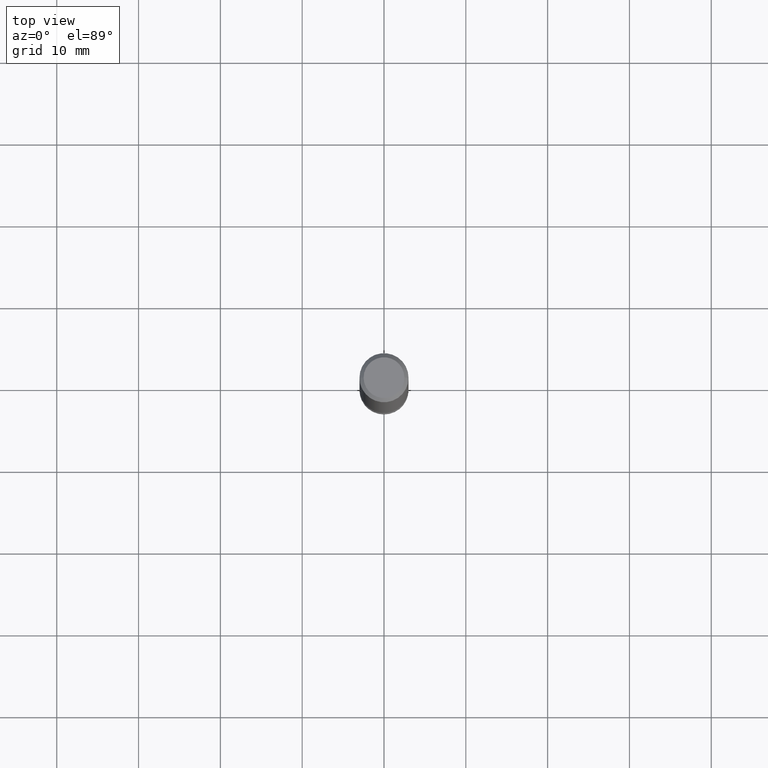
[diagram: clean part render]
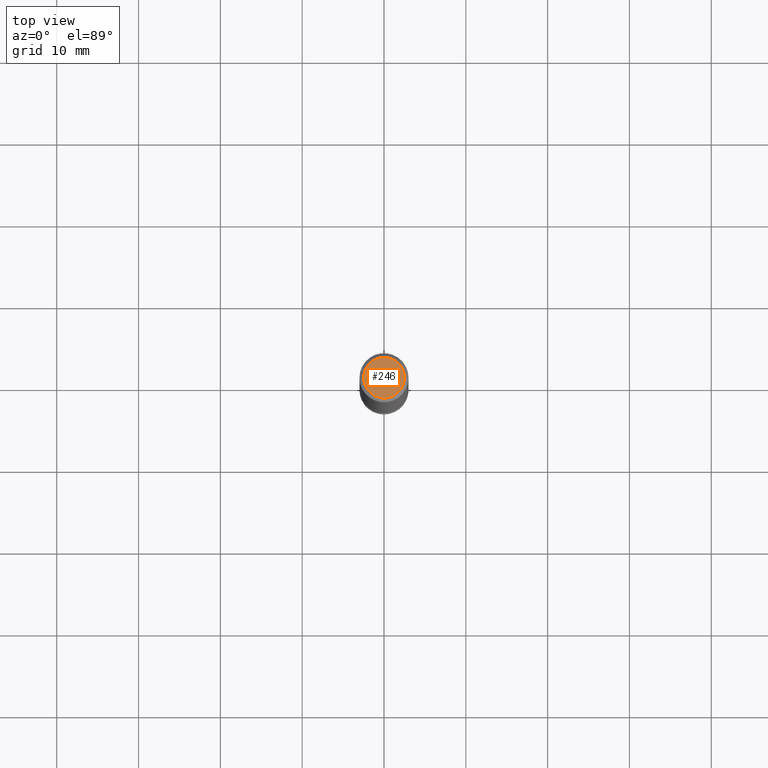
[diagram: same view with one face highlighted and labeled with its STEP entity id]
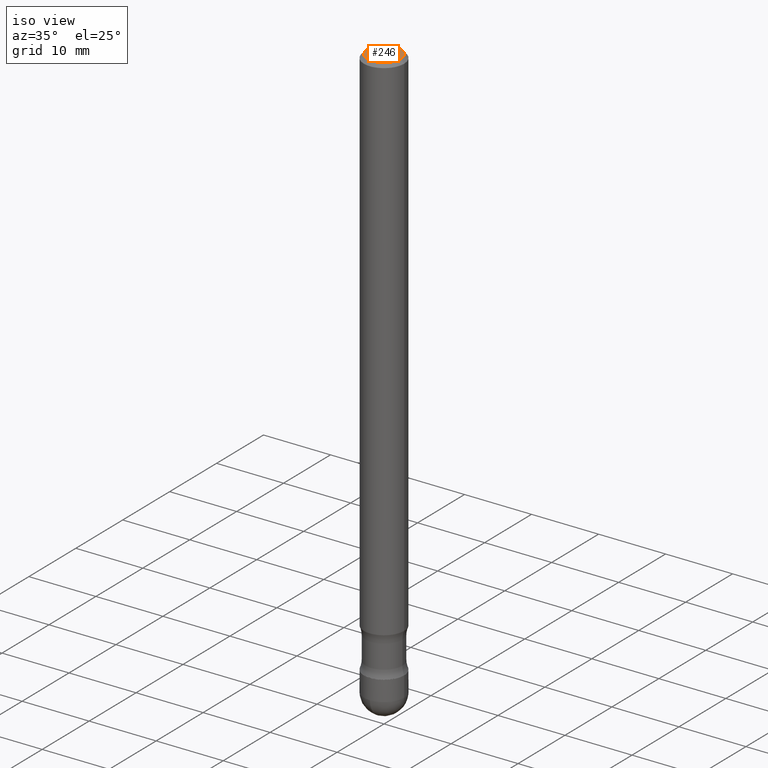
[diagram: same view with one face highlighted and labeled with its STEP entity id]
A machine part, top view. The second image highlights one B-rep face of the part: STEP entity #246.
A second angle (iso view) of the same face is appended — the face is thin or edge-on in the first view.
In plain terms, the highlighted planar face has unit normal (-0, 0, 1).
Its self-contained STEP definition (entity closure, byte-faithful):
#3 = VERTEX_POINT ( 'NONE', #464 ) ;
#50 = DIRECTION ( 'NONE',  ( 1.000000000000000000, -6.982962677686265922E-15, 4.876176775795935793E-29 ) ) ;
#120 = CIRCLE ( 'NONE', #402, 0.09809999999999965969 ) ;
#127 = ORIENTED_EDGE ( 'NONE', *, *, #268, .F. ) ;
#153 = AXIS2_PLACEMENT_3D ( 'NONE', #566, #171, #50 ) ;
#171 = DIRECTION ( 'NONE',  ( -2.438088387897960049E-29, 3.491481338843145188E-15, 1.000000000000000000 ) ) ;
#199 = DIRECTION ( 'NONE',  ( 2.445468806185136597E-29, -3.491481338843145583E-15, -1.000000000000000000 ) ) ;
#200 = EDGE_CURVE ( 'NONE', #320, #3, #349, .T. ) ;
#217 = DIRECTION ( 'NONE',  ( 2.445468806185136597E-29, -3.491481338843145583E-15, -1.000000000000000000 ) ) ;
#246 = ADVANCED_FACE ( 'NONE', ( #407 ), #452, .T. ) ;
#268 = EDGE_CURVE ( 'NONE', #3, #320, #120, .T. ) ;
#274 = CARTESIAN_POINT ( 'NONE',  ( 0.000000000000000000, 0.000000000000000000, 0.000000000000000000 ) ) ;
#309 = ORIENTED_EDGE ( 'NONE', *, *, #200, .F. ) ;
#310 = DIRECTION ( 'NONE',  ( -1.000000000000000000, 6.982962677686267499E-15, -4.876176775795936914E-29 ) ) ;
#320 = VERTEX_POINT ( 'NONE', #360 ) ;
#349 = CIRCLE ( 'NONE', #430, 0.09809999999999965969 ) ;
#360 = CARTESIAN_POINT ( 'NONE',  ( -0.09809999999999965969, 6.850286386810204829E-16, -4.783529417055797307E-30 ) ) ;
#366 = EDGE_LOOP ( 'NONE', ( #309, #127 ) ) ;
#402 = AXIS2_PLACEMENT_3D ( 'NONE', #274, #217, #310 ) ;
#407 = FACE_OUTER_BOUND ( 'NONE', #366, .T. ) ;
#427 = CARTESIAN_POINT ( 'NONE',  ( 0.000000000000000000, 0.000000000000000000, 0.000000000000000000 ) ) ;
#430 = AXIS2_PLACEMENT_3D ( 'NONE', #427, #199, #556 ) ;
#452 = PLANE ( 'NONE',  #153 ) ;
#464 = CARTESIAN_POINT ( 'NONE',  ( 0.09809999999999965969, -7.765346469475323778E-16, 5.110261127650069910E-30 ) ) ;
#556 = DIRECTION ( 'NONE',  ( -1.000000000000000000, 6.982962677686267499E-15, -4.876176775795936914E-29 ) ) ;
#566 = CARTESIAN_POINT ( 'NONE',  ( 6.850286386810203843E-16, 0.09809999999999965969, -3.595883693009130329E-16 ) ) ;